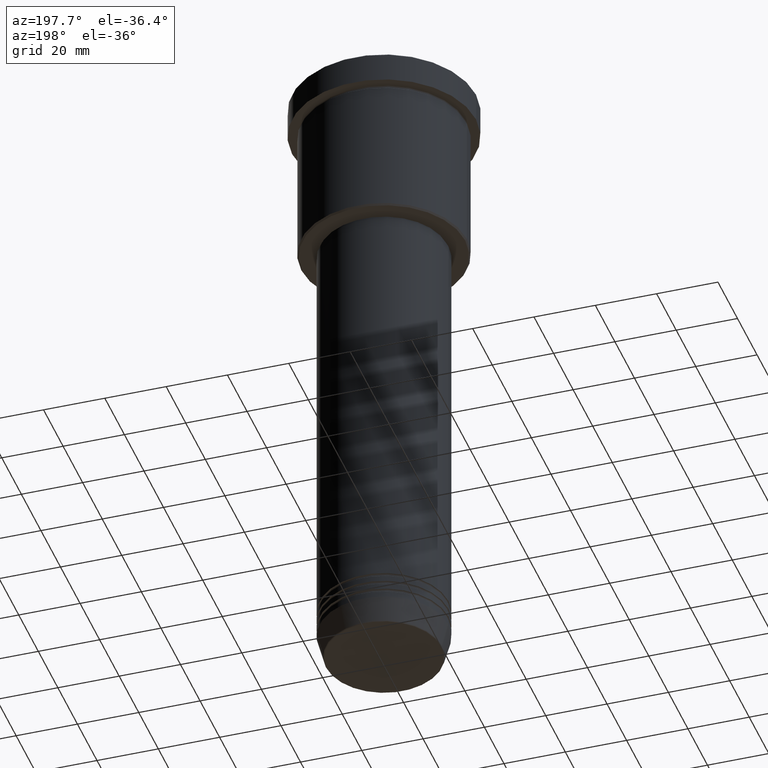
[diagram: clean part render]
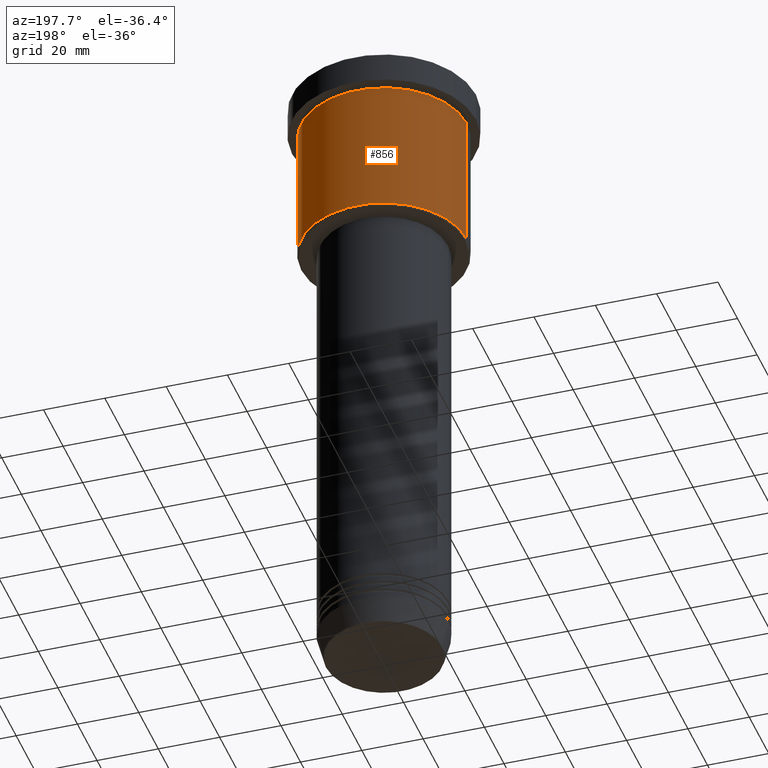
[diagram: same view with one face highlighted and labeled with its STEP entity id]
A machine part, auxiliary view. The second image highlights one B-rep face of the part: STEP entity #856.
In plain terms, the highlighted cylindrical surface (partial cylindrical patch) has radius 27 mm, axis along (-0, -0, 1).
Its self-contained STEP definition (entity closure, byte-faithful):
#7 = ORIENTED_EDGE ( 'NONE', *, *, #678, .T. ) ;
#23 = VECTOR ( 'NONE', #1014, 1000.000000000000000 ) ;
#30 = ORIENTED_EDGE ( 'NONE', *, *, #763, .F. ) ;
#81 = CARTESIAN_POINT ( 'NONE',  ( 0.000000000000000000, 0.000000000000000000, -55.49999999999997868 ) ) ;
#112 = EDGE_LOOP ( 'NONE', ( #1023, #7, #30, #1146 ) ) ;
#157 = DIRECTION ( 'NONE',  ( -0.000000000000000000, -0.000000000000000000, 1.000000000000000000 ) ) ;
#168 = VERTEX_POINT ( 'NONE', #968 ) ;
#169 = AXIS2_PLACEMENT_3D ( 'NONE', #816, #827, #1101 ) ;
#369 = VERTEX_POINT ( 'NONE', #812 ) ;
#403 = CIRCLE ( 'NONE', #1122, 27.00000000000000355 ) ;
#407 = CARTESIAN_POINT ( 'NONE',  ( 27.00000000000000355, 0.000000000000000000, 0.000000000000000000 ) ) ;
#412 = VERTEX_POINT ( 'NONE', #840 ) ;
#420 = AXIS2_PLACEMENT_3D ( 'NONE', #767, #583, #853 ) ;
#437 = EDGE_CURVE ( 'NONE', #566, #168, #1123, .T. ) ;
#510 = CYLINDRICAL_SURFACE ( 'NONE', #420, 27.00000000000000355 ) ;
#566 = VERTEX_POINT ( 'NONE', #1149 ) ;
#583 = DIRECTION ( 'NONE',  ( -0.000000000000000000, -0.000000000000000000, 1.000000000000000000 ) ) ;
#611 = DIRECTION ( 'NONE',  ( -1.000000000000000000, 0.000000000000000000, 0.000000000000000000 ) ) ;
#615 = CARTESIAN_POINT ( 'NONE',  ( -27.00000000000000355, 3.306546357697854128E-15, 0.000000000000000000 ) ) ;
#635 = DIRECTION ( 'NONE',  ( -0.000000000000000000, -0.000000000000000000, 1.000000000000000000 ) ) ;
#678 = EDGE_CURVE ( 'NONE', #369, #412, #1144, .T. ) ;
#763 = EDGE_CURVE ( 'NONE', #168, #412, #883, .T. ) ;
#767 = CARTESIAN_POINT ( 'NONE',  ( 0.000000000000000000, 0.000000000000000000, 0.000000000000000000 ) ) ;
#812 = CARTESIAN_POINT ( 'NONE',  ( -27.00000000000000355, 3.306546357697854128E-15, -55.49999999999997868 ) ) ;
#816 = CARTESIAN_POINT ( 'NONE',  ( 0.000000000000000000, 0.000000000000000000, -10.99999999999999289 ) ) ;
#827 = DIRECTION ( 'NONE',  ( -0.000000000000000000, -0.000000000000000000, 1.000000000000000000 ) ) ;
#840 = CARTESIAN_POINT ( 'NONE',  ( -27.00000000000000355, 3.306546357697854128E-15, -10.99999999999999289 ) ) ;
#853 = DIRECTION ( 'NONE',  ( 1.000000000000000000, 0.000000000000000000, 0.000000000000000000 ) ) ;
#856 = ADVANCED_FACE ( 'NONE', ( #1031 ), #510, .T. ) ;
#883 = CIRCLE ( 'NONE', #169, 27.00000000000000355 ) ;
#961 = VECTOR ( 'NONE', #157, 1000.000000000000000 ) ;
#968 = CARTESIAN_POINT ( 'NONE',  ( 27.00000000000000355, 0.000000000000000000, -10.99999999999999289 ) ) ;
#1014 = DIRECTION ( 'NONE',  ( -0.000000000000000000, -0.000000000000000000, 1.000000000000000000 ) ) ;
#1023 = ORIENTED_EDGE ( 'NONE', *, *, #1063, .T. ) ;
#1031 = FACE_OUTER_BOUND ( 'NONE', #112, .T. ) ;
#1063 = EDGE_CURVE ( 'NONE', #566, #369, #403, .T. ) ;
#1101 = DIRECTION ( 'NONE',  ( 1.000000000000000000, 0.000000000000000000, 0.000000000000000000 ) ) ;
#1122 = AXIS2_PLACEMENT_3D ( 'NONE', #81, #635, #611 ) ;
#1123 = LINE ( 'NONE', #407, #23 ) ;
#1144 = LINE ( 'NONE', #615, #961 ) ;
#1146 = ORIENTED_EDGE ( 'NONE', *, *, #437, .F. ) ;
#1149 = CARTESIAN_POINT ( 'NONE',  ( 27.00000000000000355, 0.000000000000000000, -55.49999999999997868 ) ) ;